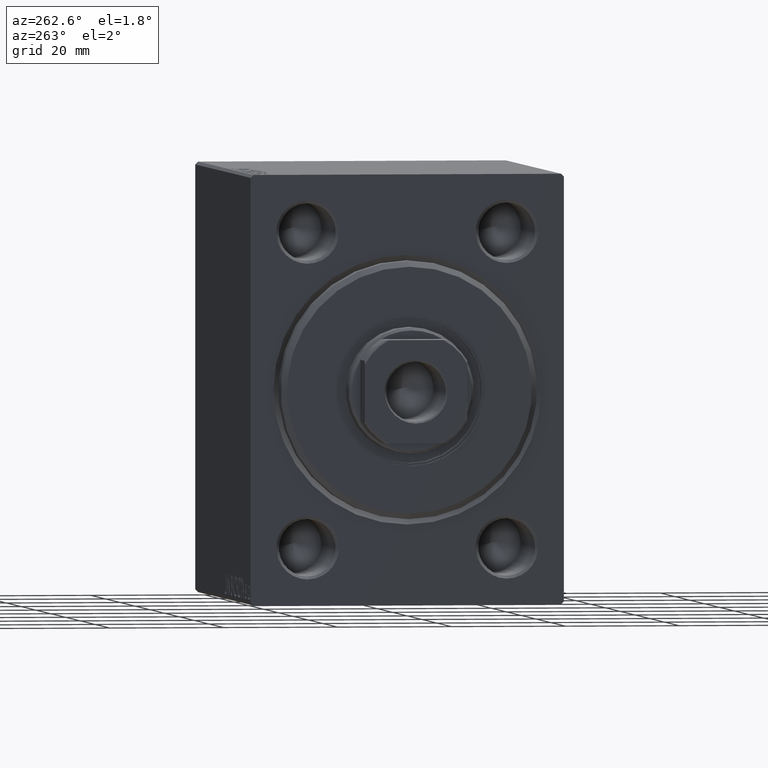
[diagram: clean part render]
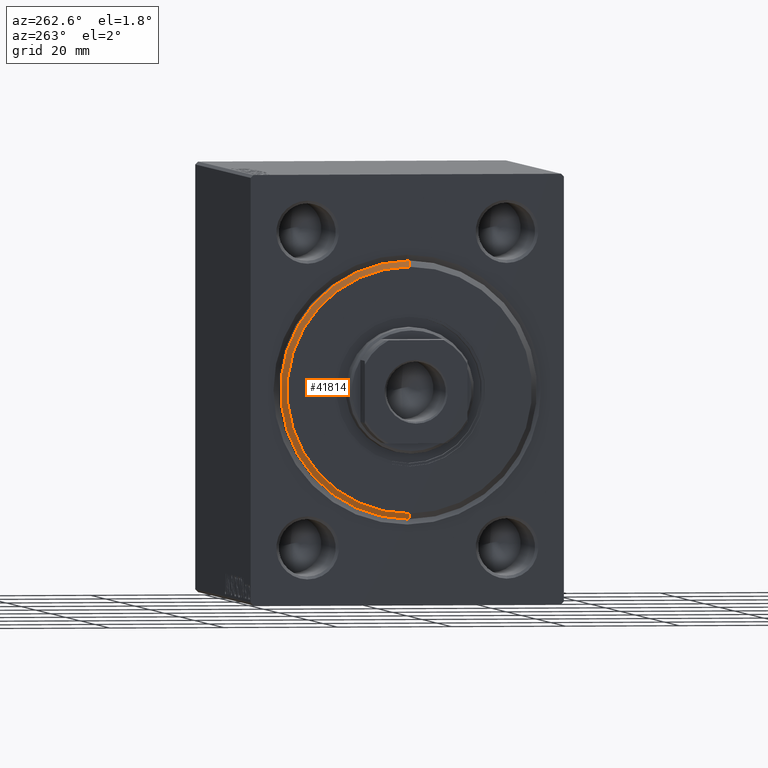
[diagram: same view with one face highlighted and labeled with its STEP entity id]
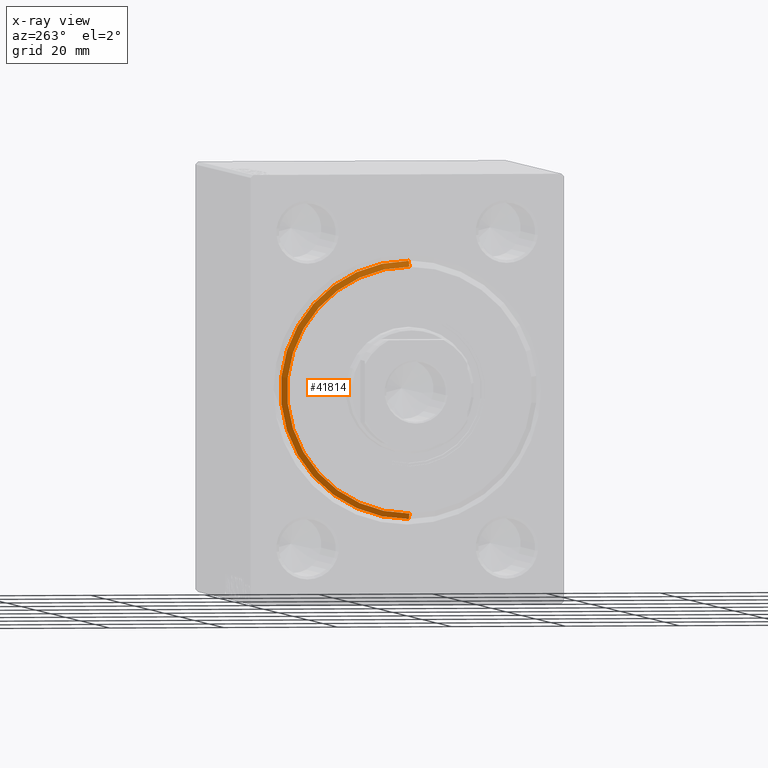
[diagram: x-ray of the same camera — body ghosted, the highlighted face saturated]
A machine part, auxiliary view. The second image highlights one B-rep face of the part: STEP entity #41814.
The next image is the same camera in x-ray: the body ghosted, the highlighted face saturated — about 0% of this face is hidden behind the body in this view.
In plain terms, the highlighted conical surface has half-angle 45 deg.
Its self-contained STEP definition (entity closure, byte-faithful):
#1077 = AXIS2_PLACEMENT_3D ( 'NONE', #17194, #3542, #23921 ) ;
#2249 = DIRECTION ( 'NONE',  ( -1.000000000000000000, 0.000000000000000000, 0.000000000000000000 ) ) ;
#3542 = DIRECTION ( 'NONE',  ( 1.000000000000000000, -0.000000000000000000, 0.000000000000000000 ) ) ;
#5440 = CARTESIAN_POINT ( 'NONE',  ( 1.999999999999999112, 2.755455298081545172E-15, -22.50000000000000355 ) ) ;
#6699 = ORIENTED_EDGE ( 'NONE', *, *, #7736, .F. ) ;
#7085 = CARTESIAN_POINT ( 'NONE',  ( 3.000000000000000000, 0.000000000000000000, 21.50000000000000355 ) ) ;
#7359 = EDGE_LOOP ( 'NONE', ( #36051, #6699, #26208, #31073 ) ) ;
#7736 = EDGE_CURVE ( 'NONE', #15403, #30432, #20394, .T. ) ;
#8612 = DIRECTION ( 'NONE',  ( 0.000000000000000000, 0.000000000000000000, 1.000000000000000000 ) ) ;
#9678 = VERTEX_POINT ( 'NONE', #38657 ) ;
#11546 = CARTESIAN_POINT ( 'NONE',  ( 3.000000000000000000, 2.694222958124177598E-15, -21.50000000000000355 ) ) ;
#12361 = AXIS2_PLACEMENT_3D ( 'NONE', #37418, #2249, #39910 ) ;
#14041 = CONICAL_SURFACE ( 'NONE', #19771, 21.50000000000000355, 0.7853981633974466137 ) ;
#15403 = VERTEX_POINT ( 'NONE', #40617 ) ;
#16197 = VERTEX_POINT ( 'NONE', #5440 ) ;
#17194 = CARTESIAN_POINT ( 'NONE',  ( 3.000000000000000000, 0.000000000000000000, 0.000000000000000000 ) ) ;
#17834 = DIRECTION ( 'NONE',  ( -0.7071067811865487940, 0.000000000000000000, 0.7071067811865463515 ) ) ;
#19771 = AXIS2_PLACEMENT_3D ( 'NONE', #25681, #39358, #8612 ) ;
#20394 = CIRCLE ( 'NONE', #1077, 21.50000000000000355 ) ;
#23921 = DIRECTION ( 'NONE',  ( 0.000000000000000000, 0.000000000000000000, -1.000000000000000000 ) ) ;
#25403 = LINE ( 'NONE', #39524, #43913 ) ;
#25681 = CARTESIAN_POINT ( 'NONE',  ( 3.000000000000000000, 0.000000000000000000, 0.000000000000000000 ) ) ;
#26208 = ORIENTED_EDGE ( 'NONE', *, *, #40866, .T. ) ;
#27280 = LINE ( 'NONE', #7085, #39898 ) ;
#28100 = CIRCLE ( 'NONE', #12361, 22.50000000000000355 ) ;
#28270 = EDGE_CURVE ( 'NONE', #16197, #9678, #28100, .T. ) ;
#28677 = EDGE_CURVE ( 'NONE', #30432, #16197, #25403, .T. ) ;
#29422 = DIRECTION ( 'NONE',  ( -0.7071067811865487940, 8.659560562354919300E-17, -0.7071067811865463515 ) ) ;
#30432 = VERTEX_POINT ( 'NONE', #11546 ) ;
#31073 = ORIENTED_EDGE ( 'NONE', *, *, #28270, .F. ) ;
#36051 = ORIENTED_EDGE ( 'NONE', *, *, #28677, .F. ) ;
#37418 = CARTESIAN_POINT ( 'NONE',  ( 1.999999999999999112, 0.000000000000000000, 0.000000000000000000 ) ) ;
#38657 = CARTESIAN_POINT ( 'NONE',  ( 1.999999999999999112, 0.000000000000000000, 22.50000000000000355 ) ) ;
#39358 = DIRECTION ( 'NONE',  ( -1.000000000000000000, 0.000000000000000000, 0.000000000000000000 ) ) ;
#39524 = CARTESIAN_POINT ( 'NONE',  ( 3.000000000000000000, 2.632990618166810024E-15, -21.50000000000000355 ) ) ;
#39898 = VECTOR ( 'NONE', #17834, 1000.000000000000000 ) ;
#39910 = DIRECTION ( 'NONE',  ( 0.000000000000000000, 0.000000000000000000, -1.000000000000000000 ) ) ;
#40617 = CARTESIAN_POINT ( 'NONE',  ( 3.000000000000000000, 0.000000000000000000, 21.50000000000000355 ) ) ;
#40866 = EDGE_CURVE ( 'NONE', #15403, #9678, #27280, .T. ) ;
#41814 = ADVANCED_FACE ( 'NONE', ( #42738 ), #14041, .T. ) ;
#42738 = FACE_OUTER_BOUND ( 'NONE', #7359, .T. ) ;
#43913 = VECTOR ( 'NONE', #29422, 1000.000000000000000 ) ;